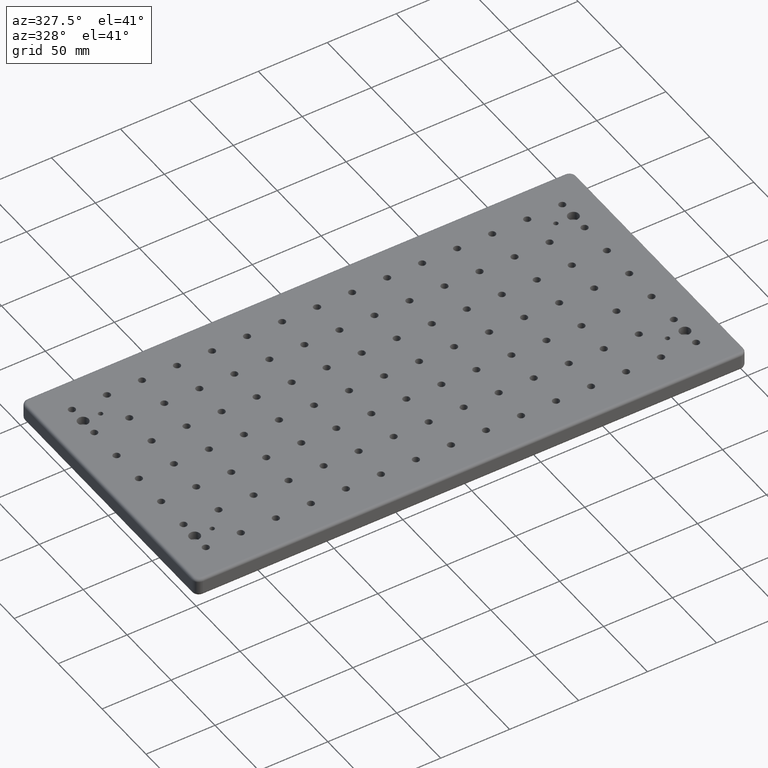
[diagram: clean part render]
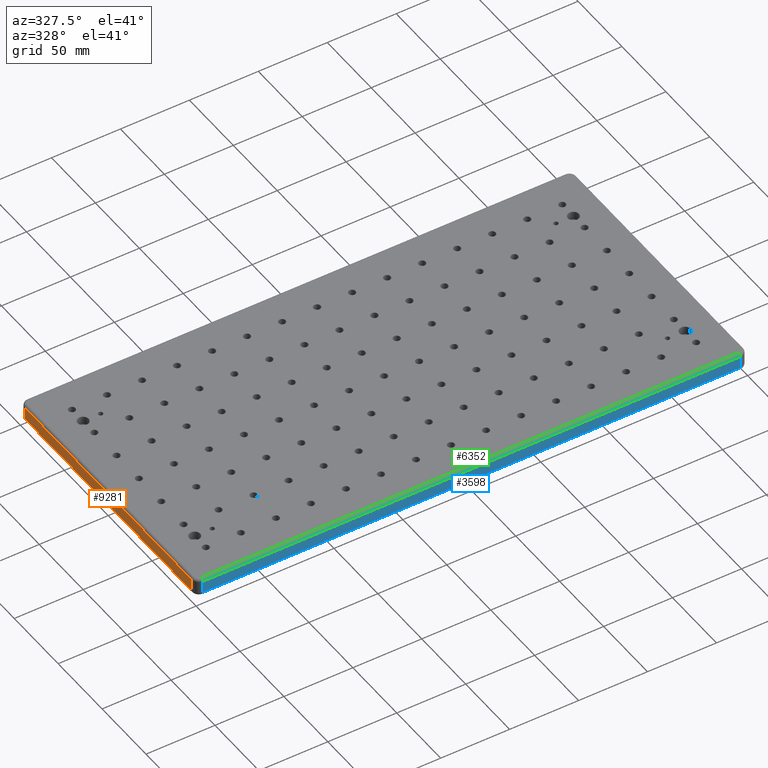
[diagram: same view with three faces highlighted in distinct colors, each labeled with its STEP entity id]
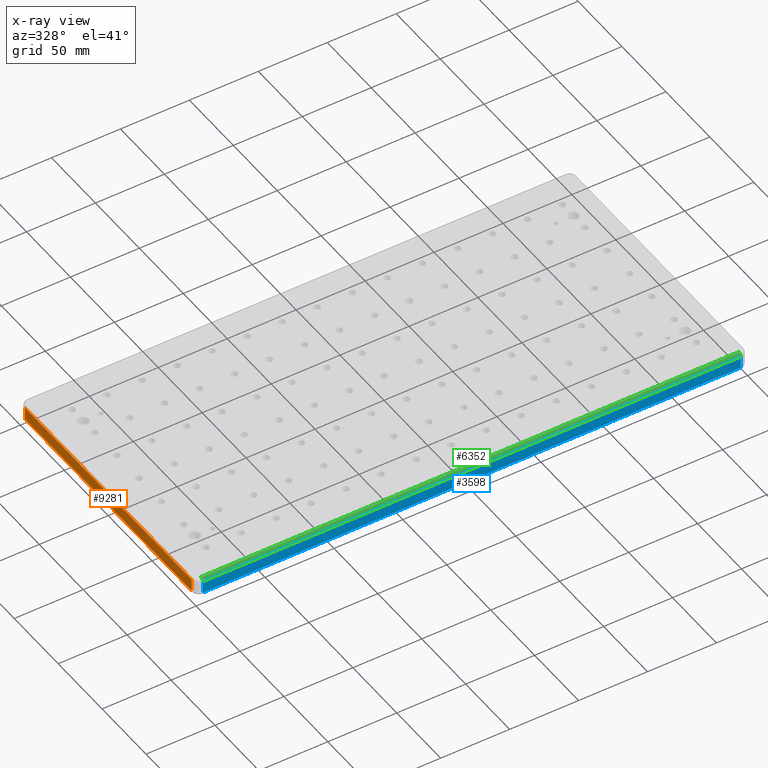
[diagram: x-ray of the same camera — body ghosted, the three highlighted faces saturated]
A machine part, auxiliary view with three faces highlighted in distinct colors.
The next image is the same camera in x-ray (body ghosted, the three faces saturated) — at least one of them is partly hidden behind the body in this view.
Their STEP definitions:

[orange] entity #9281 — the highlighted planar face has unit normal (-1, 0, 0).
#463 = VERTEX_POINT ( 'NONE', #9408 ) ;
#564 = DIRECTION ( 'NONE',  ( 0.0000000000000000000, 0.0000000000000000000, 1.000000000000000000 ) ) ;
#654 = DIRECTION ( 'NONE',  ( 0.0000000000000000000, -1.000000000000000000, 0.0000000000000000000 ) ) ;
#1032 = PLANE ( 'NONE',  #5886 ) ;
#1114 = CARTESIAN_POINT ( 'NONE',  ( -199.9999999999999400, -95.00000000000011400, -13.00000000000000000 ) ) ;
#1294 = VERTEX_POINT ( 'NONE', #4833 ) ;
#1358 = EDGE_CURVE ( 'NONE', #463, #5440, #7682, .T. ) ;
#1622 = VECTOR ( 'NONE', #564, 1000.000000000000000 ) ;
#1779 = CARTESIAN_POINT ( 'NONE',  ( -199.9999999999999400, -95.00000000000011400, -2.000000000000003600 ) ) ;
#2021 = LINE ( 'NONE', #4786, #5798 ) ;
#2097 = FACE_OUTER_BOUND ( 'NONE', #2369, .T. ) ;
#2369 = EDGE_LOOP ( 'NONE', ( #3290, #7431, #8932, #3740 ) ) ;
#2534 = CARTESIAN_POINT ( 'NONE',  ( -199.9999999999999400, -95.00000000000011400, -13.00000000000000000 ) ) ;
#3290 = ORIENTED_EDGE ( 'NONE', *, *, #7424, .F. ) ;
#3339 = DIRECTION ( 'NONE',  ( -0.0000000000000000000, 1.000000000000000000, -0.0000000000000000000 ) ) ;
#3740 = ORIENTED_EDGE ( 'NONE', *, *, #5407, .T. ) ;
#4396 = EDGE_CURVE ( 'NONE', #1294, #463, #8849, .T. ) ;
#4714 = DIRECTION ( 'NONE',  ( -1.000000000000000000, 0.0000000000000000000, 0.0000000000000000000 ) ) ;
#4786 = CARTESIAN_POINT ( 'NONE',  ( -199.9999999999999400, 95.00000000000011400, -2.000000000000000000 ) ) ;
#4833 = CARTESIAN_POINT ( 'NONE',  ( -199.9999999999999400, 95.00000000000011400, -11.00000000000000000 ) ) ;
#4945 = LINE ( 'NONE', #6467, #1622 ) ;
#5407 = EDGE_CURVE ( 'NONE', #5440, #8282, #2021, .T. ) ;
#5440 = VERTEX_POINT ( 'NONE', #1779 ) ;
#5798 = VECTOR ( 'NONE', #3339, 1000.000000000000000 ) ;
#5886 = AXIS2_PLACEMENT_3D ( 'NONE', #2534, #4714, #8385 ) ;
#6467 = CARTESIAN_POINT ( 'NONE',  ( -199.9999999999999400, 95.00000000000011400, -13.00000000000000000 ) ) ;
#7003 = CARTESIAN_POINT ( 'NONE',  ( -199.9999999999999400, 95.00000000000011400, -2.000000000000001800 ) ) ;
#7384 = VECTOR ( 'NONE', #654, 1000.000000000000000 ) ;
#7424 = EDGE_CURVE ( 'NONE', #1294, #8282, #4945, .T. ) ;
#7431 = ORIENTED_EDGE ( 'NONE', *, *, #4396, .T. ) ;
#7682 = LINE ( 'NONE', #1114, #8706 ) ;
#7834 = DIRECTION ( 'NONE',  ( 0.0000000000000000000, 0.0000000000000000000, 1.000000000000000000 ) ) ;
#8282 = VERTEX_POINT ( 'NONE', #7003 ) ;
#8385 = DIRECTION ( 'NONE',  ( 0.0000000000000000000, 0.0000000000000000000, 1.000000000000000000 ) ) ;
#8706 = VECTOR ( 'NONE', #7834, 1000.000000000000000 ) ;
#8849 = LINE ( 'NONE', #9389, #7384 ) ;
#8932 = ORIENTED_EDGE ( 'NONE', *, *, #1358, .T. ) ;
#9281 = ADVANCED_FACE ( 'NONE', ( #2097 ), #1032, .T. ) ;
#9389 = CARTESIAN_POINT ( 'NONE',  ( -199.9999999999999400, -95.00000000000011400, -11.00000000000000000 ) ) ;
#9408 = CARTESIAN_POINT ( 'NONE',  ( -199.9999999999999400, -95.00000000000011400, -11.00000000000000000 ) ) ;

[blue] entity #3598 — the highlighted planar face has unit normal (-0, -1, 0).
#85 = CARTESIAN_POINT ( 'NONE',  ( 195.0000000000001100, -100.0000000000000400, -13.00000000000000000 ) ) ;
#414 = EDGE_LOOP ( 'NONE', ( #1479, #4094, #3621, #4771 ) ) ;
#588 = EDGE_CURVE ( 'NONE', #7335, #782, #7263, .T. ) ;
#676 = LINE ( 'NONE', #5362, #5031 ) ;
#782 = VERTEX_POINT ( 'NONE', #3947 ) ;
#935 = DIRECTION ( 'NONE',  ( 1.000000000000000000, -1.067522139062650100E-016, 0.0000000000000000000 ) ) ;
#1269 = VECTOR ( 'NONE', #8756, 1000.000000000000000 ) ;
#1479 = ORIENTED_EDGE ( 'NONE', *, *, #8609, .F. ) ;
#2133 = CARTESIAN_POINT ( 'NONE',  ( 195.0000000000001100, -100.0000000000000400, -11.00000000000000000 ) ) ;
#2324 = DIRECTION ( 'NONE',  ( -1.000000000000000000, 1.067522139062650100E-016, -0.0000000000000000000 ) ) ;
#2863 = CARTESIAN_POINT ( 'NONE',  ( -195.0000000000001100, -99.99999999999997200, -13.00000000000000000 ) ) ;
#3029 = CARTESIAN_POINT ( 'NONE',  ( -195.0000000000001100, -100.0000000000000000, -2.000000000000000000 ) ) ;
#3598 = ADVANCED_FACE ( 'NONE', ( #8187 ), #7404, .T. ) ;
#3621 = ORIENTED_EDGE ( 'NONE', *, *, #6309, .T. ) ;
#3743 = DIRECTION ( 'NONE',  ( 1.000000000000000000, -1.067522139062650100E-016, 0.0000000000000000000 ) ) ;
#3947 = CARTESIAN_POINT ( 'NONE',  ( -195.0000000000001100, -99.99999999999997200, -2.000000000000001800 ) ) ;
#4094 = ORIENTED_EDGE ( 'NONE', *, *, #8848, .T. ) ;
#4211 = LINE ( 'NONE', #2863, #5274 ) ;
#4771 = ORIENTED_EDGE ( 'NONE', *, *, #588, .T. ) ;
#5031 = VECTOR ( 'NONE', #935, 1000.000000000000000 ) ;
#5274 = VECTOR ( 'NONE', #6461, 1000.000000000000000 ) ;
#5362 = CARTESIAN_POINT ( 'NONE',  ( -195.0000000000001100, -100.0000000000000000, -11.00000000000000000 ) ) ;
#6021 = AXIS2_PLACEMENT_3D ( 'NONE', #8130, #8916, #3743 ) ;
#6054 = CARTESIAN_POINT ( 'NONE',  ( -195.0000000000001100, -99.99999999999997200, -11.00000000000000000 ) ) ;
#6309 = EDGE_CURVE ( 'NONE', #7538, #7335, #8370, .T. ) ;
#6461 = DIRECTION ( 'NONE',  ( 0.0000000000000000000, 0.0000000000000000000, 1.000000000000000000 ) ) ;
#6877 = CARTESIAN_POINT ( 'NONE',  ( 195.0000000000001100, -100.0000000000000400, -2.000000000000003600 ) ) ;
#7263 = LINE ( 'NONE', #3029, #9169 ) ;
#7335 = VERTEX_POINT ( 'NONE', #6877 ) ;
#7404 = PLANE ( 'NONE',  #6021 ) ;
#7538 = VERTEX_POINT ( 'NONE', #2133 ) ;
#8130 = CARTESIAN_POINT ( 'NONE',  ( -195.0000000000001100, -100.0000000000000000, -13.00000000000000000 ) ) ;
#8187 = FACE_OUTER_BOUND ( 'NONE', #414, .T. ) ;
#8370 = LINE ( 'NONE', #85, #1269 ) ;
#8609 = EDGE_CURVE ( 'NONE', #8880, #782, #4211, .T. ) ;
#8756 = DIRECTION ( 'NONE',  ( 0.0000000000000000000, 0.0000000000000000000, 1.000000000000000000 ) ) ;
#8848 = EDGE_CURVE ( 'NONE', #8880, #7538, #676, .T. ) ;
#8880 = VERTEX_POINT ( 'NONE', #6054 ) ;
#8916 = DIRECTION ( 'NONE',  ( -1.067522139062650100E-016, -1.000000000000000000, 0.0000000000000000000 ) ) ;
#9169 = VECTOR ( 'NONE', #2324, 1000.000000000000000 ) ;

[green] entity #6352 — the highlighted cylindrical surface (edge-blend (fillet) strip) has radius 2 mm, axis along (-1, 0, 0).
#123 = VERTEX_POINT ( 'NONE', #7630 ) ;
#516 = ORIENTED_EDGE ( 'NONE', *, *, #6929, .F. ) ;
#588 = EDGE_CURVE ( 'NONE', #7335, #782, #7263, .T. ) ;
#782 = VERTEX_POINT ( 'NONE', #3947 ) ;
#859 = EDGE_CURVE ( 'NONE', #123, #782, #3126, .T. ) ;
#1119 = LINE ( 'NONE', #4829, #6531 ) ;
#1723 = CIRCLE ( 'NONE', #7284, 2.000000000000001800 ) ;
#1833 = AXIS2_PLACEMENT_3D ( 'NONE', #2597, #5615, #8476 ) ;
#2028 = EDGE_CURVE ( 'NONE', #123, #2706, #1119, .T. ) ;
#2324 = DIRECTION ( 'NONE',  ( -1.000000000000000000, 1.067522139062650100E-016, -0.0000000000000000000 ) ) ;
#2597 = CARTESIAN_POINT ( 'NONE',  ( -195.0000000000001100, -97.99999999999997200, -2.000000000000000000 ) ) ;
#2706 = VERTEX_POINT ( 'NONE', #7030 ) ;
#2735 = ORIENTED_EDGE ( 'NONE', *, *, #859, .T. ) ;
#3007 = FACE_OUTER_BOUND ( 'NONE', #3548, .T. ) ;
#3012 = CARTESIAN_POINT ( 'NONE',  ( -195.0000000000001400, -98.00000000000000000, -2.000000000000000000 ) ) ;
#3029 = CARTESIAN_POINT ( 'NONE',  ( -195.0000000000001100, -100.0000000000000000, -2.000000000000000000 ) ) ;
#3126 = CIRCLE ( 'NONE', #1833, 2.000000000000000000 ) ;
#3462 = DIRECTION ( 'NONE',  ( 1.000000000000000000, -1.387778780781444300E-014, 0.0000000000000000000 ) ) ;
#3548 = EDGE_LOOP ( 'NONE', ( #2735, #7609, #516, #6165 ) ) ;
#3774 = DIRECTION ( 'NONE',  ( -1.000000000000000000, 1.067522139062650100E-016, 0.0000000000000000000 ) ) ;
#3947 = CARTESIAN_POINT ( 'NONE',  ( -195.0000000000001100, -99.99999999999997200, -2.000000000000001800 ) ) ;
#4194 = CARTESIAN_POINT ( 'NONE',  ( 195.0000000000001400, -98.00000000000004300, -2.000000000000000000 ) ) ;
#4829 = CARTESIAN_POINT ( 'NONE',  ( 195.0000000000000900, -98.00000000000004300, 0.0000000000000000000 ) ) ;
#4837 = CYLINDRICAL_SURFACE ( 'NONE', #5007, 2.000000000000001800 ) ;
#5007 = AXIS2_PLACEMENT_3D ( 'NONE', #3012, #3774, #8099 ) ;
#5615 = DIRECTION ( 'NONE',  ( 1.000000000000000000, 0.0000000000000000000, -0.0000000000000000000 ) ) ;
#6165 = ORIENTED_EDGE ( 'NONE', *, *, #2028, .F. ) ;
#6352 = ADVANCED_FACE ( 'NONE', ( #3007 ), #4837, .T. ) ;
#6531 = VECTOR ( 'NONE', #7768, 1000.000000000000000 ) ;
#6877 = CARTESIAN_POINT ( 'NONE',  ( 195.0000000000001100, -100.0000000000000400, -2.000000000000003600 ) ) ;
#6929 = EDGE_CURVE ( 'NONE', #2706, #7335, #1723, .T. ) ;
#7030 = CARTESIAN_POINT ( 'NONE',  ( 195.0000000000001400, -98.00000000000004300, 0.0000000000000000000 ) ) ;
#7197 = DIRECTION ( 'NONE',  ( 1.387778780781444400E-014, 1.000000000000000000, 0.0000000000000000000 ) ) ;
#7263 = LINE ( 'NONE', #3029, #9169 ) ;
#7284 = AXIS2_PLACEMENT_3D ( 'NONE', #4194, #3462, #7197 ) ;
#7335 = VERTEX_POINT ( 'NONE', #6877 ) ;
#7609 = ORIENTED_EDGE ( 'NONE', *, *, #588, .F. ) ;
#7630 = CARTESIAN_POINT ( 'NONE',  ( -195.0000000000001100, -97.99999999999997200, 0.0000000000000000000 ) ) ;
#7768 = DIRECTION ( 'NONE',  ( 1.000000000000000000, -1.067522139062650100E-016, 0.0000000000000000000 ) ) ;
#8099 = DIRECTION ( 'NONE',  ( 0.0000000000000000000, -1.000000000000000000, 0.0000000000000000000 ) ) ;
#8476 = DIRECTION ( 'NONE',  ( 0.0000000000000000000, 0.0000000000000000000, -1.000000000000000000 ) ) ;
#9169 = VECTOR ( 'NONE', #2324, 1000.000000000000000 ) ;